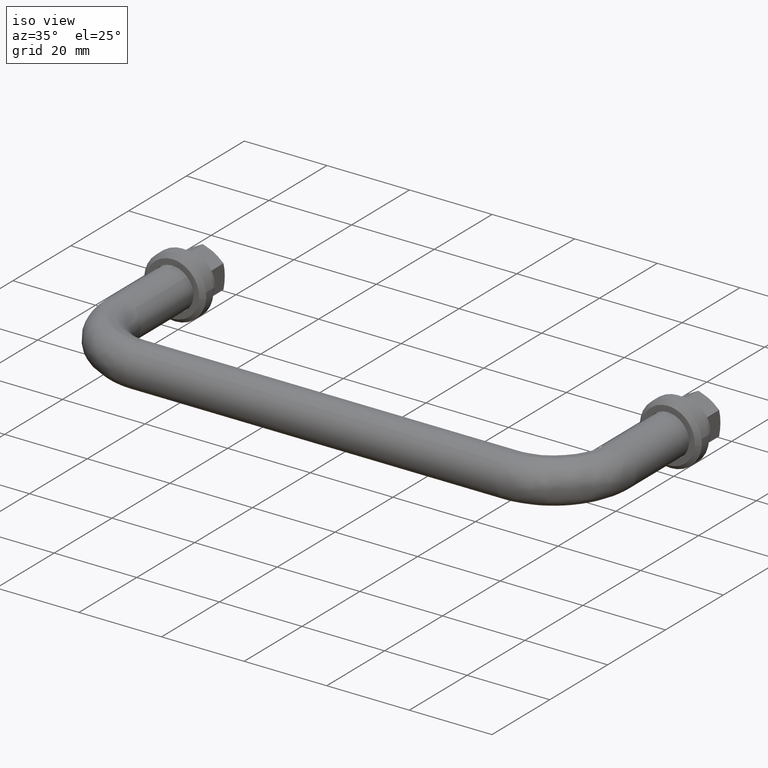
[diagram: clean part render]
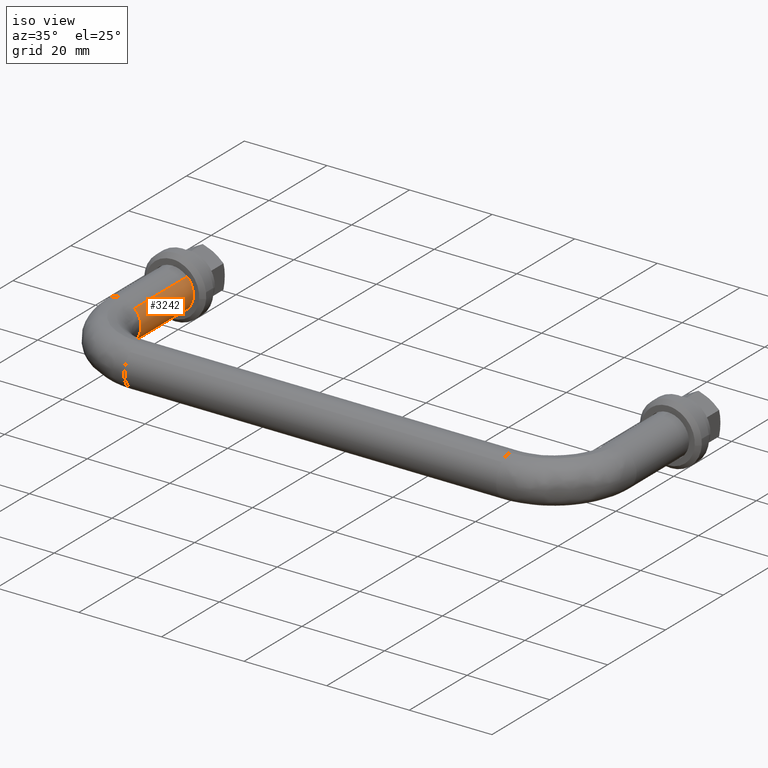
[diagram: same view with one face highlighted and labeled with its STEP entity id]
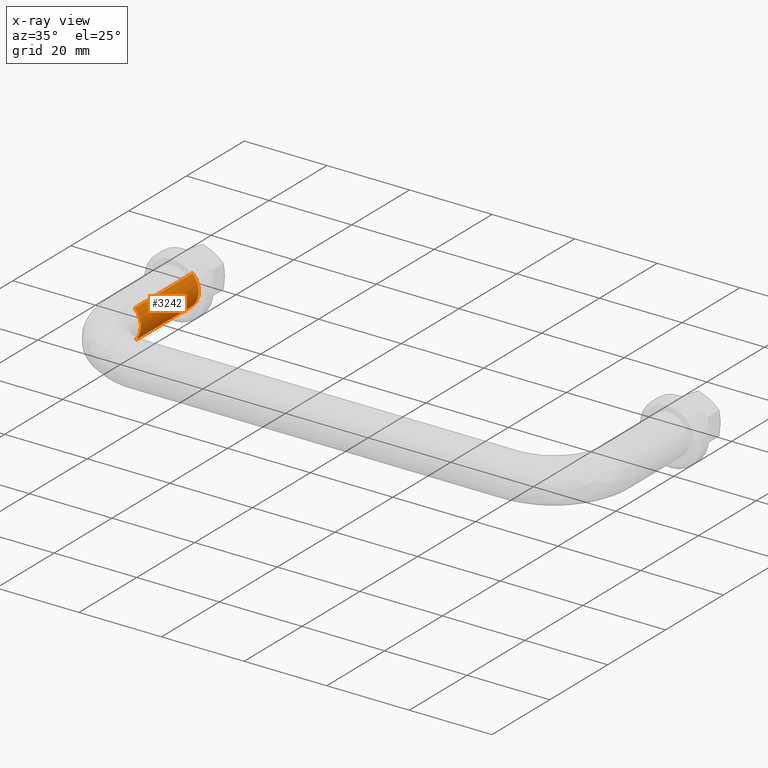
[diagram: x-ray of the same camera — body ghosted, the highlighted face saturated]
A machine part, iso view. The second image highlights one B-rep face of the part: STEP entity #3242.
The next image is the same camera in x-ray: the body ghosted, the highlighted face saturated — about 0% of this face is hidden behind the body in this view.
In plain terms, the highlighted face is a freeform B-spline surface patch.
Its self-contained STEP definition (entity closure, byte-faithful):
#3055=CARTESIAN_POINT('',(3.504545881485945,-19.999999999996021,3.566252678125415));
#3056=VERTEX_POINT('',#3055);
#3070=CARTESIAN_POINT('',(3.504545999161051,5.551115E-017,3.566252562531720));
#3071=VERTEX_POINT('',#3070);
#3072=CARTESIAN_POINT('',(3.504545999161051,5.551115E-017,3.566252562531720));
#3073=CARTESIAN_POINT('',(3.504545881485945,-19.999999999996021,3.566252678125415));
#3074=QUASI_UNIFORM_CURVE('',1,(#3072,#3073),.UNSPECIFIED.,.F.,.U.);
#3075=EDGE_CURVE('',#3071,#3056,#3074,.T.);
#3094=CARTESIAN_POINT('',(3.566252367963553,5.551115E-017,-3.504546197155106));
#3095=VERTEX_POINT('',#3094);
#3111=CARTESIAN_POINT('',(3.566252369489986,-19.999999999999989,-3.504546195601798));
#3112=VERTEX_POINT('',#3111);
#3113=CARTESIAN_POINT('',(3.566252367963553,5.551115E-017,-3.504546197155106));
#3114=CARTESIAN_POINT('',(3.566252369489986,-19.999999999999989,-3.504546195601798));
#3115=QUASI_UNIFORM_CURVE('',1,(#3113,#3114),.UNSPECIFIED.,.F.,.U.);
#3116=EDGE_CURVE('',#3095,#3112,#3115,.T.);
#3168=CARTESIAN_POINT('',(3.566252245770907,0.500000000023292,-3.504546321499253));
#3169=CARTESIAN_POINT('',(7.070798567270160,0.500000000023293,0.061705924271653));
#3170=CARTESIAN_POINT('',(3.504546321499253,0.500000000023292,3.566252245770907));
#3171=CARTESIAN_POINT('',(3.566252245770909,-20.512500000955502,-3.504546321499253));
#3172=CARTESIAN_POINT('',(7.070798567270163,-20.512500000955491,0.061705924271653));
#3173=CARTESIAN_POINT('',(3.504546321499256,-20.512500000955502,3.566252245770907));
#3181=(BOUNDED_SURFACE()B_SPLINE_SURFACE(2,1,((#3168,#3171),(#3169,#3172),(#3170,#3173)),.UNSPECIFIED.,.F.,.F.,.U.)B_SPLINE_SURFACE_WITH_KNOTS((3,3),(2,2),(0.0,8.284271247461899),(0.0,21.012500000978790),.UNSPECIFIED.)GEOMETRIC_REPRESENTATION_ITEM()RATIONAL_B_SPLINE_SURFACE(((1.0,1.0),(0.707106781186548,0.707106781186548),(1.0,1.0)))REPRESENTATION_ITEM('')SURFACE());
#3182=CARTESIAN_POINT('',(5.000000000000003,-20.0,0.0));
#3183=VERTEX_POINT('',#3182);
#3184=CARTESIAN_POINT('',(3.504545881485945,-19.999999999996028,3.566252678125415));
#3185=CARTESIAN_POINT('',(5.000000000000003,-19.999999999999996,2.096674734106717));
#3186=CARTESIAN_POINT('',(5.000000000000003,-20.0,0.0));
#3194=(BOUNDED_CURVE()B_SPLINE_CURVE(2,(#3184,#3185,#3186),.UNSPECIFIED.,.F.,.U.)B_SPLINE_CURVE_WITH_KNOTS((3,3),(0.873683205178173,1.0),.UNSPECIFIED.)CURVE()GEOMETRIC_REPRESENTATION_ITEM()RATIONAL_B_SPLINE_CURVE((0.853569642170475,0.852010669497747,1.0))REPRESENTATION_ITEM(''));
#3195=EDGE_CURVE('',#3056,#3183,#3194,.T.);
#3196=ORIENTED_EDGE('',*,*,#3195,.T.);
#3197=CARTESIAN_POINT('',(5.000000000000003,-20.0,0.0));
#3198=CARTESIAN_POINT('',(5.000000000000003,-19.999999999999996,-2.045553801083140));
#3199=CARTESIAN_POINT('',(3.566252369489986,-20.0,-3.504546195601798));
#3207=(BOUNDED_CURVE()B_SPLINE_CURVE(2,(#3197,#3198,#3199),.UNSPECIFIED.,.F.,.U.)B_SPLINE_CURVE_WITH_KNOTS((3,3),(0.0,0.123683231755248),.UNSPECIFIED.)CURVE()GEOMETRIC_REPRESENTATION_ITEM()RATIONAL_B_SPLINE_CURVE((1.0,0.855096080551820,0.853569641514465))REPRESENTATION_ITEM(''));
#3208=EDGE_CURVE('',#3183,#3112,#3207,.T.);
#3209=ORIENTED_EDGE('',*,*,#3208,.T.);
#3210=ORIENTED_EDGE('',*,*,#3116,.F.);
#3211=CARTESIAN_POINT('',(5.0,0.0,0.0));
#3212=VERTEX_POINT('',#3211);
#3213=CARTESIAN_POINT('',(5.0,0.0,0.0));
#3214=CARTESIAN_POINT('',(5.000000000000001,0.0,-2.045553803625427));
#3215=CARTESIAN_POINT('',(3.566252367963553,5.551115E-017,-3.504546197155106));
#3223=(BOUNDED_CURVE()B_SPLINE_CURVE(2,(#3213,#3214,#3215),.UNSPECIFIED.,.F.,.U.)B_SPLINE_CURVE_WITH_KNOTS((3,3),(0.0,0.123683231886692),.UNSPECIFIED.)CURVE()GEOMETRIC_REPRESENTATION_ITEM()RATIONAL_B_SPLINE_CURVE((1.0,0.855096080397824,0.853569641511221))REPRESENTATION_ITEM(''));
#3224=EDGE_CURVE('',#3212,#3095,#3223,.T.);
#3225=ORIENTED_EDGE('',*,*,#3224,.F.);
#3226=CARTESIAN_POINT('',(3.504545999161051,5.551115E-017,3.566252562531720));
#3227=CARTESIAN_POINT('',(5.000000000000001,0.0,2.096674540188269));
#3228=CARTESIAN_POINT('',(5.0,0.0,0.0));
#3236=(BOUNDED_CURVE()B_SPLINE_CURVE(2,(#3226,#3227,#3228),.UNSPECIFIED.,.F.,.U.)B_SPLINE_CURVE_WITH_KNOTS((3,3),(0.873683215132094,1.0),.UNSPECIFIED.)CURVE()GEOMETRIC_REPRESENTATION_ITEM()RATIONAL_B_SPLINE_CURVE((0.853569641924778,0.852010681159491,1.0))REPRESENTATION_ITEM(''));
#3237=EDGE_CURVE('',#3071,#3212,#3236,.T.);
#3238=ORIENTED_EDGE('',*,*,#3237,.F.);
#3239=ORIENTED_EDGE('',*,*,#3075,.T.);
#3240=EDGE_LOOP('',(#3196,#3209,#3210,#3225,#3238,#3239));
#3241=FACE_OUTER_BOUND('',#3240,.T.);
#3242=ADVANCED_FACE('',(#3241),#3181,.T.);